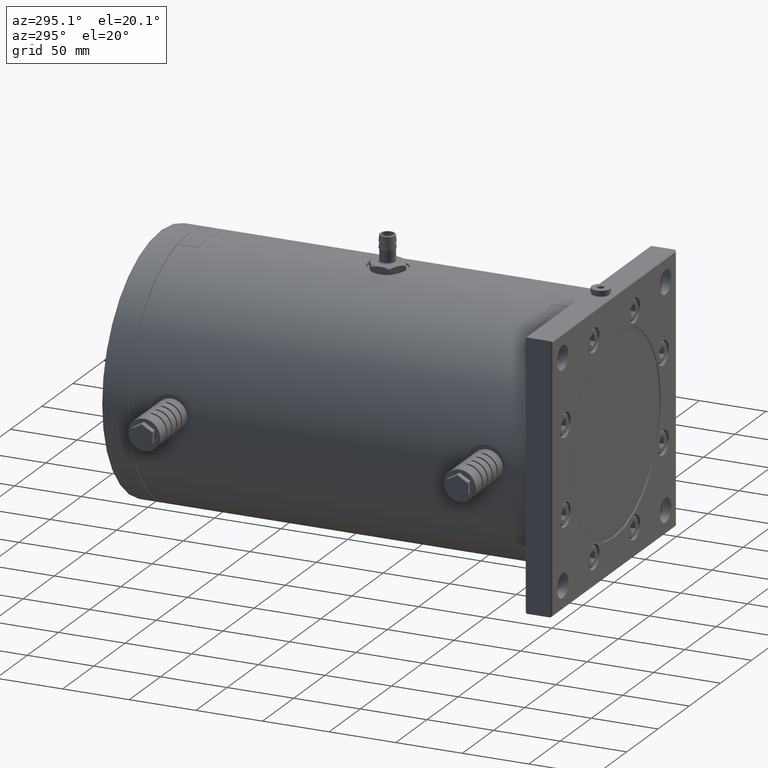
[diagram: clean part render]
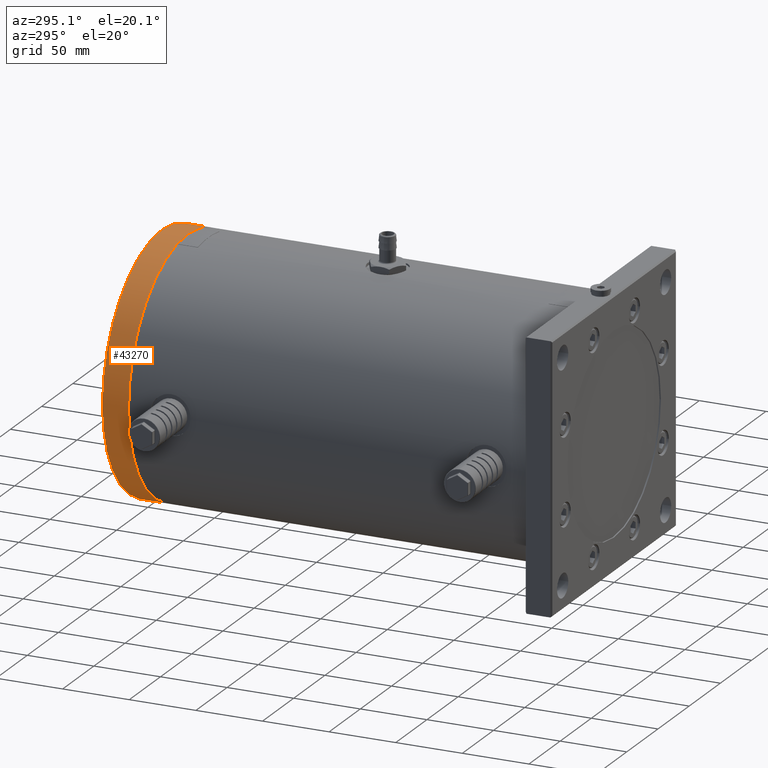
[diagram: same view with one face highlighted and labeled with its STEP entity id]
A machine part, auxiliary view. The second image highlights one B-rep face of the part: STEP entity #43270.
In plain terms, the highlighted cylindrical surface (partial cylindrical patch) has radius 95 mm, axis along (0, -1, -0).
Its self-contained STEP definition (entity closure, byte-faithful):
#716 = DIRECTION ( 'NONE',  ( -0.3826834323658035400, 1.752983723092352800E-015, -0.9238795325109912000 ) ) ;
#3218 = FACE_OUTER_BOUND ( 'NONE', #40292, .T. ) ;
#6803 = CARTESIAN_POINT ( 'NONE',  ( -7.077659115756189900E-013, 320.0000000000000000, 8.263342556229470200E-013 ) ) ;
#7534 = CYLINDRICAL_SURFACE ( 'NONE', #15993, 94.99999999999998600 ) ;
#8461 = ORIENTED_EDGE ( 'NONE', *, *, #49446, .T. ) ;
#8516 = CARTESIAN_POINT ( 'NONE',  ( -7.468804124653830000E-013, 340.0000000000000000, 8.795649438914299800E-013 ) ) ;
#8647 = CARTESIAN_POINT ( 'NONE',  ( 36.35492607475062200, 339.4999999999998300, 87.76855558854499900 ) ) ;
#10379 = CARTESIAN_POINT ( 'NONE',  ( -7.459025499431389500E-013, 339.5000000000000000, 8.782341766847179800E-013 ) ) ;
#10540 = DIRECTION ( 'NONE',  ( 0.3826834323658035400, -1.752983723092352800E-015, 0.9238795325109912000 ) ) ;
#11637 = EDGE_CURVE ( 'NONE', #34060, #11834, #33967, .T. ) ;
#11834 = VERTEX_POINT ( 'NONE', #38336 ) ;
#12149 = VECTOR ( 'NONE', #22024, 1000.000000000000000 ) ;
#14230 = CARTESIAN_POINT ( 'NONE',  ( 36.35492607475058700, 339.9999999999998900, 87.76855558854501300 ) ) ;
#14573 = DIRECTION ( 'NONE',  ( 0.3826834323658035400, -1.752983723092352800E-015, 0.9238795325109912000 ) ) ;
#14641 = VERTEX_POINT ( 'NONE', #34073 ) ;
#15235 = AXIS2_PLACEMENT_3D ( 'NONE', #6803, #29778, #14573 ) ;
#15370 = AXIS2_PLACEMENT_3D ( 'NONE', #10379, #18143, #10540 ) ;
#15453 = DIRECTION ( 'NONE',  ( 1.955725044488215100E-015, -1.000000000000000000, -2.661534413424140000E-015 ) ) ;
#15478 = EDGE_CURVE ( 'NONE', #40261, #14641, #44785, .T. ) ;
#15792 = CARTESIAN_POINT ( 'NONE',  ( -36.35492607475207900, 340.0000000000001700, -87.76855558854326500 ) ) ;
#15993 = AXIS2_PLACEMENT_3D ( 'NONE', #8516, #24540, #716 ) ;
#18143 = DIRECTION ( 'NONE',  ( 1.955725044488215100E-015, -1.000000000000000000, -2.661534413424140000E-015 ) ) ;
#22024 = DIRECTION ( 'NONE',  ( 1.955725044488215100E-015, -1.000000000000000000, -2.661534413424140000E-015 ) ) ;
#24540 = DIRECTION ( 'NONE',  ( 1.955725044488215100E-015, -1.000000000000000000, -2.661534413424140000E-015 ) ) ;
#24655 = LINE ( 'NONE', #15792, #36398 ) ;
#29778 = DIRECTION ( 'NONE',  ( -1.955725044488215100E-015, 1.000000000000000000, 2.661534413424140000E-015 ) ) ;
#30390 = CARTESIAN_POINT ( 'NONE',  ( -36.35492607475206500, 320.0000000000001700, -87.76855558854330800 ) ) ;
#32607 = ORIENTED_EDGE ( 'NONE', *, *, #11637, .T. ) ;
#32645 = ORIENTED_EDGE ( 'NONE', *, *, #45981, .F. ) ;
#33967 = CIRCLE ( 'NONE', #15370, 94.99999999999998600 ) ;
#34060 = VERTEX_POINT ( 'NONE', #8647 ) ;
#34073 = CARTESIAN_POINT ( 'NONE',  ( 36.35492607475061500, 319.9999999999998300, 87.76855558854498400 ) ) ;
#36398 = VECTOR ( 'NONE', #15453, 1000.000000000000000 ) ;
#38336 = CARTESIAN_POINT ( 'NONE',  ( -36.35492607475205800, 339.5000000000001700, -87.76855558854327900 ) ) ;
#40261 = VERTEX_POINT ( 'NONE', #30390 ) ;
#40292 = EDGE_LOOP ( 'NONE', ( #32645, #32607, #8461, #50079 ) ) ;
#41176 = LINE ( 'NONE', #14230, #12149 ) ;
#43270 = ADVANCED_FACE ( 'NONE', ( #3218 ), #7534, .T. ) ;
#44785 = CIRCLE ( 'NONE', #15235, 94.99999999999998600 ) ;
#45981 = EDGE_CURVE ( 'NONE', #34060, #14641, #41176, .T. ) ;
#49446 = EDGE_CURVE ( 'NONE', #11834, #40261, #24655, .T. ) ;
#50079 = ORIENTED_EDGE ( 'NONE', *, *, #15478, .T. ) ;